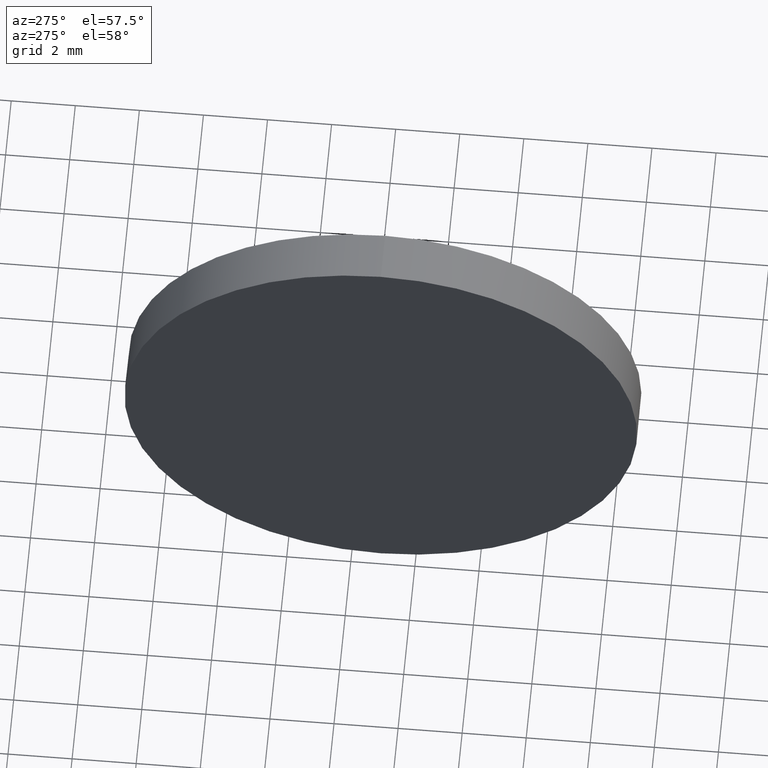
[diagram: clean part render]
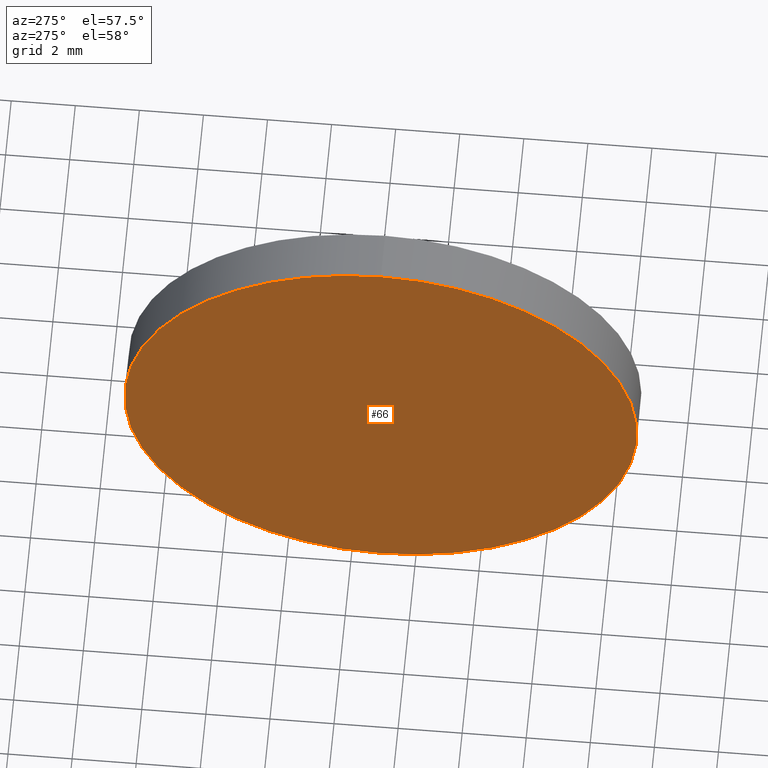
[diagram: same view with one face highlighted and labeled with its STEP entity id]
A machine part, auxiliary view. The second image highlights one B-rep face of the part: STEP entity #66.
In plain terms, the highlighted planar face has unit normal (1, 0, 0).
Its self-contained STEP definition (entity closure, byte-faithful):
#7 = DIRECTION ( 'NONE',  ( -1.000000000000000000, -0.0000000000000000000, -0.0000000000000000000 ) ) ;
#30 = AXIS2_PLACEMENT_3D ( 'NONE', #90, #103, #147 ) ;
#53 = VERTEX_POINT ( 'NONE', #63 ) ;
#54 = CIRCLE ( 'NONE', #30, 7.999999999999992900 ) ;
#60 = DIRECTION ( 'NONE',  ( 0.0000000000000000000, 0.0000000000000000000, 1.000000000000000000 ) ) ;
#63 = CARTESIAN_POINT ( 'NONE',  ( 408.1674928420184800, 111.0797885215637400, -7.999999999999992900 ) ) ;
#66 = ADVANCED_FACE ( 'NONE', ( #154 ), #181, .F. ) ;
#70 = EDGE_CURVE ( 'NONE', #173, #53, #107, .T. ) ;
#73 = DIRECTION ( 'NONE',  ( 0.0000000000000000000, 0.0000000000000000000, -1.000000000000000000 ) ) ;
#88 = AXIS2_PLACEMENT_3D ( 'NONE', #145, #7, #60 ) ;
#90 = CARTESIAN_POINT ( 'NONE',  ( 408.1674928420184800, 111.0797885215637400, 0.0000000000000000000 ) ) ;
#96 = AXIS2_PLACEMENT_3D ( 'NONE', #159, #179, #73 ) ;
#103 = DIRECTION ( 'NONE',  ( -1.000000000000000000, -0.0000000000000000000, -0.0000000000000000000 ) ) ;
#107 = CIRCLE ( 'NONE', #88, 7.999999999999992900 ) ;
#120 = EDGE_LOOP ( 'NONE', ( #121, #175 ) ) ;
#121 = ORIENTED_EDGE ( 'NONE', *, *, #70, .T. ) ;
#145 = CARTESIAN_POINT ( 'NONE',  ( 408.1674928420184800, 111.0797885215637400, 0.0000000000000000000 ) ) ;
#147 = DIRECTION ( 'NONE',  ( 0.0000000000000000000, 0.0000000000000000000, 1.000000000000000000 ) ) ;
#154 = FACE_OUTER_BOUND ( 'NONE', #120, .T. ) ;
#159 = CARTESIAN_POINT ( 'NONE',  ( 408.1674928420184800, 111.0797885215637400, 0.0000000000000000000 ) ) ;
#171 = CARTESIAN_POINT ( 'NONE',  ( 408.1674928420184800, 111.0797885215637400, 7.999999999999992900 ) ) ;
#173 = VERTEX_POINT ( 'NONE', #171 ) ;
#175 = ORIENTED_EDGE ( 'NONE', *, *, #176, .T. ) ;
#176 = EDGE_CURVE ( 'NONE', #53, #173, #54, .T. ) ;
#179 = DIRECTION ( 'NONE',  ( 1.000000000000000000, 0.0000000000000000000, 0.0000000000000000000 ) ) ;
#181 = PLANE ( 'NONE',  #96 ) ;